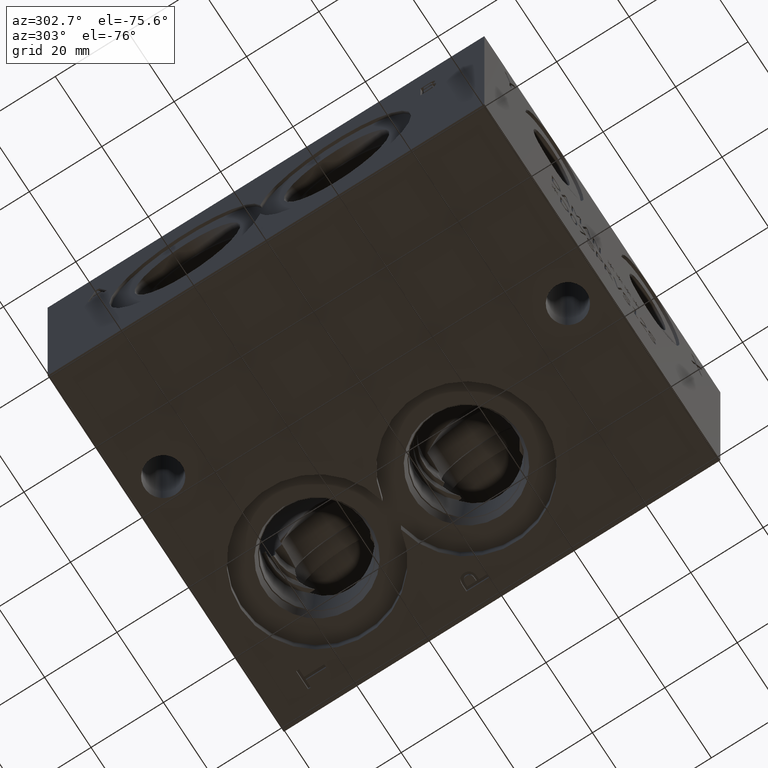
[diagram: clean part render]
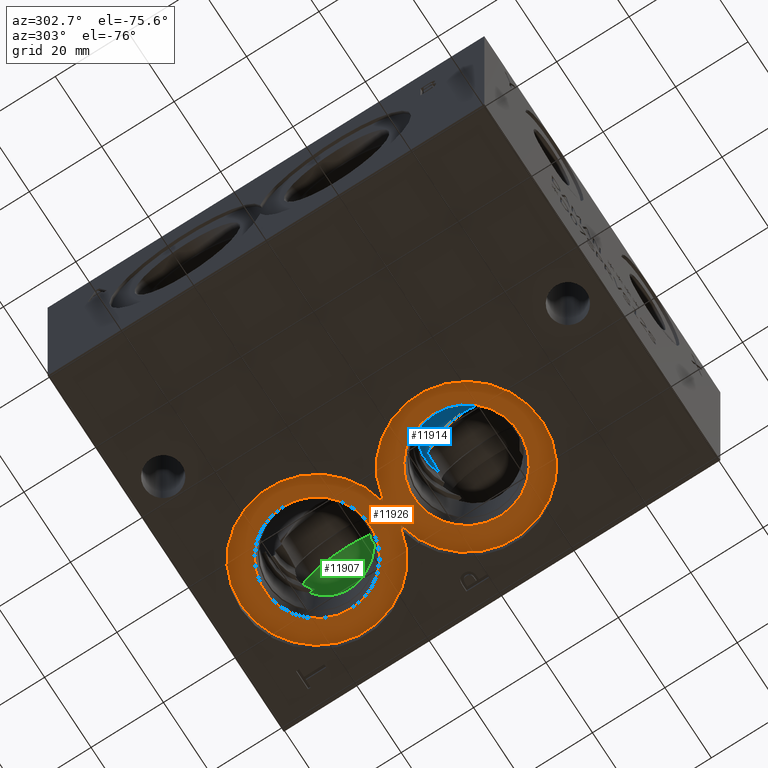
[diagram: same view with three faces highlighted in distinct colors, each labeled with its STEP entity id]
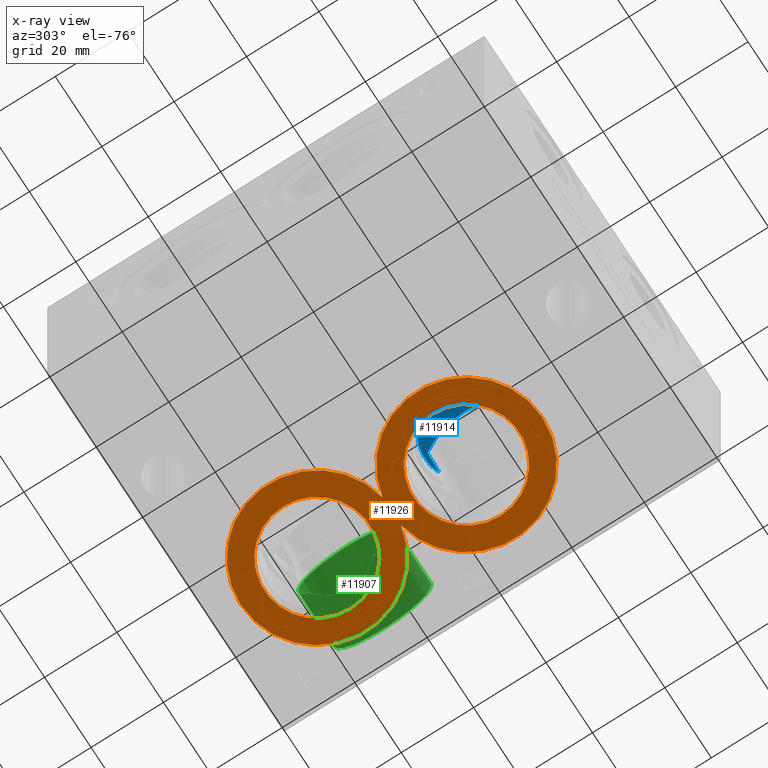
[diagram: x-ray of the same camera — body ghosted, the three highlighted faces saturated]
A machine part, auxiliary view with three faces highlighted in distinct colors.
The next image is the same camera in x-ray (body ghosted, the three faces saturated) — at least one of them is partly hidden behind the body in this view.
Their STEP definitions:

[orange] entity #11926 — the highlighted planar face has unit normal (0, 0, 1).
#181=CIRCLE('',#12443,21.0185);
#182=CIRCLE('',#12445,14.5923);
#183=CIRCLE('',#12446,14.5923);
#203=CIRCLE('',#12481,21.0185);
#204=CIRCLE('',#12483,14.5923);
#205=CIRCLE('',#12484,14.5923);
#444=FACE_BOUND('',#2082,.T.);
#445=FACE_BOUND('',#2083,.T.);
#1420=FACE_OUTER_BOUND('',#2081,.T.);
#2081=EDGE_LOOP('',(#10007,#10008));
#2082=EDGE_LOOP('',(#10009,#10010));
#2083=EDGE_LOOP('',(#10011,#10012));
#5359=VERTEX_POINT('',#20001);
#5360=VERTEX_POINT('',#20003);
#5361=VERTEX_POINT('',#20007);
#5362=VERTEX_POINT('',#20008);
#5392=VERTEX_POINT('',#20200);
#5393=VERTEX_POINT('',#20201);
#6944=EDGE_CURVE('',#5359,#5360,#181,.T.);
#6946=EDGE_CURVE('',#5361,#5362,#182,.T.);
#6947=EDGE_CURVE('',#5362,#5361,#183,.T.);
#6992=EDGE_CURVE('',#5360,#5359,#203,.T.);
#6993=EDGE_CURVE('',#5392,#5393,#204,.T.);
#6994=EDGE_CURVE('',#5393,#5392,#205,.T.);
#10007=ORIENTED_EDGE('',*,*,#6992,.F.);
#10008=ORIENTED_EDGE('',*,*,#6944,.F.);
#10009=ORIENTED_EDGE('',*,*,#6946,.T.);
#10010=ORIENTED_EDGE('',*,*,#6947,.T.);
#10011=ORIENTED_EDGE('',*,*,#6993,.T.);
#10012=ORIENTED_EDGE('',*,*,#6994,.T.);
#10963=PLANE('',#12482);
#11926=ADVANCED_FACE('',(#1420,#444,#445),#10963,.F.);
#12443=AXIS2_PLACEMENT_3D('',#20004,#14566,#14567);
#12445=AXIS2_PLACEMENT_3D('',#20009,#14571,#14572);
#12446=AXIS2_PLACEMENT_3D('',#20010,#14573,#14574);
#12481=AXIS2_PLACEMENT_3D('',#20198,#14653,#14654);
#12482=AXIS2_PLACEMENT_3D('',#20199,#14655,#14656);
#12483=AXIS2_PLACEMENT_3D('',#20202,#14657,#14658);
#12484=AXIS2_PLACEMENT_3D('',#20203,#14659,#14660);
#14566=DIRECTION('center_axis',(0.,0.,1.));
#14567=DIRECTION('ref_axis',(1.,0.,0.));
#14571=DIRECTION('center_axis',(0.,0.,1.));
#14572=DIRECTION('ref_axis',(1.,0.,0.));
#14573=DIRECTION('center_axis',(0.,0.,1.));
#14574=DIRECTION('ref_axis',(1.,0.,0.));
#14653=DIRECTION('center_axis',(0.,0.,1.));
#14654=DIRECTION('ref_axis',(1.,0.,0.));
#14655=DIRECTION('center_axis',(0.,0.,1.));
#14656=DIRECTION('ref_axis',(1.,0.,0.));
#14657=DIRECTION('center_axis',(0.,0.,1.));
#14658=DIRECTION('ref_axis',(1.,0.,0.));
#14659=DIRECTION('center_axis',(0.,0.,1.));
#14660=DIRECTION('ref_axis',(1.,0.,0.));
#20001=CARTESIAN_POINT('',(75.4340343339049,71.4375,3.81));
#20003=CARTESIAN_POINT('',(67.4663656660951,71.4375,3.81));
#20004=CARTESIAN_POINT('Origin',(71.4502,92.075,3.81));
#20007=CARTESIAN_POINT('',(86.0425,92.075,3.81));
#20008=CARTESIAN_POINT('',(56.8579,92.075,3.81));
#20009=CARTESIAN_POINT('Origin',(71.4502,92.075,3.81));
#20010=CARTESIAN_POINT('Origin',(71.4502,92.075,3.81));
#20198=CARTESIAN_POINT('Origin',(71.4502,50.8,3.81));
#20199=CARTESIAN_POINT('Origin',(86.0425,50.8,3.81));
#20200=CARTESIAN_POINT('',(86.0425,50.8,3.81));
#20201=CARTESIAN_POINT('',(56.8579,50.8,3.81));
#20202=CARTESIAN_POINT('Origin',(71.4502,50.8,3.81));
#20203=CARTESIAN_POINT('Origin',(71.4502,50.8,3.81));

[blue] entity #11914 — the highlighted conical surface has half-angle 60 deg.
#98=CONICAL_SURFACE('',#12454,5.7531,1.0471975511966);
#188=CIRCLE('',#12455,11.5062);
#779=B_SPLINE_CURVE_WITH_KNOTS('',3,(#20028,#20029,#20030,#20031,#20032,
#20033,#20034,#20035,#20036,#20037,#20038,#20039,#20040,#20041,#20042,#20043,
#20044,#20045,#20046,#20047,#20048,#20049),.UNSPECIFIED.,.F.,.F.,(4,2,2,
2,2,2,2,2,2,2,4),(2.01189149208214,2.09373382588156,2.44268946352848,2.79164510117541,
3.02935355425341,3.26706200733141,3.47118819933564,3.67531439133987,4.02843997387604,
4.38156555641221,4.39087054353072),.UNSPECIFIED.);
#780=B_SPLINE_CURVE_WITH_KNOTS('',3,(#20052,#20053,#20054,#20055,#20056,
#20057),.UNSPECIFIED.,.F.,.F.,(4,2,4),(2.88771073771434,2.95869221847608,
3.4340856360223),.UNSPECIFIED.);
#1408=FACE_OUTER_BOUND('',#2069,.T.);
#2069=EDGE_LOOP('',(#9935,#9936,#9937));
#5367=VERTEX_POINT('',#20026);
#5368=VERTEX_POINT('',#20027);
#5369=VERTEX_POINT('',#20050);
#6955=EDGE_CURVE('',#5367,#5368,#779,.T.);
#6956=EDGE_CURVE('',#5367,#5369,#188,.T.);
#6957=EDGE_CURVE('',#5368,#5369,#780,.T.);
#9935=ORIENTED_EDGE('',*,*,#6955,.F.);
#9936=ORIENTED_EDGE('',*,*,#6956,.T.);
#9937=ORIENTED_EDGE('',*,*,#6957,.F.);
#11914=ADVANCED_FACE('',(#1408),#98,.F.);
#12454=AXIS2_PLACEMENT_3D('',#20025,#14592,#14593);
#12455=AXIS2_PLACEMENT_3D('',#20051,#14594,#14595);
#14592=DIRECTION('center_axis',(0.,0.,-1.));
#14593=DIRECTION('ref_axis',(-0.967611865128273,0.252442624100971,0.));
#14594=DIRECTION('center_axis',(0.,0.,-1.));
#14595=DIRECTION('ref_axis',(1.,0.,0.));
#20025=CARTESIAN_POINT('Origin',(71.4502,50.8,37.2111438336748));
#20026=CARTESIAN_POINT('',(70.3821344063609,39.3434789605359,33.88959));
#20027=CARTESIAN_POINT('',(70.74278,61.1787558593382,34.5266169640349));
#20028=CARTESIAN_POINT('Ctrl Pts',(70.3821344063609,39.3434789605359,33.88959));
#20029=CARTESIAN_POINT('Ctrl Pts',(70.2672487408472,39.5714781271394,34.0145000043378));
#20030=CARTESIAN_POINT('Ctrl Pts',(70.1542219470524,39.7999118521081,34.138376859169));
#20031=CARTESIAN_POINT('Ctrl Pts',(69.5704842616892,41.0050275485885,34.7846425543015));
#20032=CARTESIAN_POINT('Ctrl Pts',(69.1346054771949,41.9890970436658,35.2873030029356));
#20033=CARTESIAN_POINT('Ctrl Pts',(68.4034172297671,43.9973626545964,36.2467802327419));
#20034=CARTESIAN_POINT('Ctrl Pts',(68.1078129961189,45.0214249763685,36.703652392201));
#20035=CARTESIAN_POINT('Ctrl Pts',(67.8445629445876,46.8124438164804,37.4433245310726));
#20036=CARTESIAN_POINT('Ctrl Pts',(67.8046908502403,47.6168039239969,37.7642014740276));
#20037=CARTESIAN_POINT('Ctrl Pts',(67.8860808717586,49.2382183812738,38.318104015088));
#20038=CARTESIAN_POINT('Ctrl Pts',(67.9971152003617,50.057851090749,38.5450178844303));
#20039=CARTESIAN_POINT('Ctrl Pts',(68.1402001276011,51.5219358084862,38.616221150163));
#20040=CARTESIAN_POINT('Ctrl Pts',(68.1842937904309,52.2465911188186,38.501918883564));
#20041=CARTESIAN_POINT('Ctrl Pts',(68.3103396609093,53.6602884400418,38.1069061476227));
#20042=CARTESIAN_POINT('Ctrl Pts',(68.4031601146883,54.3530117971536,37.8431029523439));
#20043=CARTESIAN_POINT('Ctrl Pts',(68.7316481947334,56.0455660227015,37.1519560796689));
#20044=CARTESIAN_POINT('Ctrl Pts',(69.0407460908371,57.0789333752279,36.6671059555553));
#20045=CARTESIAN_POINT('Ctrl Pts',(69.7904594811097,59.1114985198847,35.653023113344));
#20046=CARTESIAN_POINT('Ctrl Pts',(70.2291775688556,60.1098906115251,35.1207760302629));
#20047=CARTESIAN_POINT('Ctrl Pts',(70.7176202170495,61.1265700186042,34.5556717983246));
#20048=CARTESIAN_POINT('Ctrl Pts',(70.730187028592,61.1526659495716,34.5411506950421));
#20049=CARTESIAN_POINT('Ctrl Pts',(70.7427800000003,61.1787558593386,34.5266169640359));
#20050=CARTESIAN_POINT('',(76.1151523301387,61.3181204688639,33.88959));
#20051=CARTESIAN_POINT('Origin',(71.4502,50.8,33.88959));
#20052=CARTESIAN_POINT('Ctrl Pts',(70.7427799999999,61.1787558593379,34.5266169640363));
#20053=CARTESIAN_POINT('Ctrl Pts',(70.9778103293508,61.1760776857127,34.537387230337));
#20054=CARTESIAN_POINT('Ctrl Pts',(71.2135950641276,61.1747044415706,34.5428592652461));
#20055=CARTESIAN_POINT('Ctrl Pts',(73.0348447251541,61.1747044415706,34.5428592652461));
#20056=CARTESIAN_POINT('Ctrl Pts',(74.5821452982343,61.2426739542066,34.2882468060995));
#20057=CARTESIAN_POINT('Ctrl Pts',(76.1151523301387,61.3181204688639,33.88959));

[green] entity #11907 — the highlighted cylindrical surface (bore or boss wall) has radius 13.495 mm, axis along (1, 0, 0).
#26=CYLINDRICAL_SURFACE('',#12436,13.495);
#177=CIRCLE('',#12437,13.495);
#178=CIRCLE('',#12438,13.495);
#179=CIRCLE('',#12439,13.495);
#180=CIRCLE('',#12440,13.495);
#777=B_SPLINE_CURVE_WITH_KNOTS('',3,(#19947,#19948,#19949,#19950,#19951,
#19952,#19953,#19954,#19955,#19956,#19957,#19958,#19959,#19960,#19961,#19962),
 .UNSPECIFIED.,.F.,.F.,(4,2,2,2,2,2,2,4),(1.13677695459243,1.29019437783011,
1.58415647963276,2.01917402584803,2.23668279895566,2.45419157206329,2.926631718692,
3.07599351553705),.UNSPECIFIED.);
#1401=FACE_OUTER_BOUND('',#2062,.T.);
#2062=EDGE_LOOP('',(#9894,#9895,#9896,#9897,#9898,#9899,#9900,#9901));
#3235=LINE('',#19932,#4345);
#3242=LINE('',#19995,#4352);
#4345=VECTOR('',#14523,10.);
#4352=VECTOR('',#14554,13.495);
#5346=VERTEX_POINT('',#19929);
#5347=VERTEX_POINT('',#19931);
#5351=VERTEX_POINT('',#19945);
#5356=VERTEX_POINT('',#19991);
#5357=VERTEX_POINT('',#19992);
#5358=VERTEX_POINT('',#19994);
#6921=EDGE_CURVE('',#5347,#5346,#3235,.T.);
#6928=EDGE_CURVE('',#5346,#5351,#777,.T.);
#6938=EDGE_CURVE('',#5356,#5357,#177,.T.);
#6939=EDGE_CURVE('',#5356,#5358,#3242,.T.);
#6940=EDGE_CURVE('',#5347,#5358,#178,.T.);
#6941=EDGE_CURVE('',#5358,#5351,#179,.T.);
#6942=EDGE_CURVE('',#5357,#5356,#180,.T.);
#9894=ORIENTED_EDGE('',*,*,#6938,.F.);
#9895=ORIENTED_EDGE('',*,*,#6939,.T.);
#9896=ORIENTED_EDGE('',*,*,#6940,.F.);
#9897=ORIENTED_EDGE('',*,*,#6921,.T.);
#9898=ORIENTED_EDGE('',*,*,#6928,.T.);
#9899=ORIENTED_EDGE('',*,*,#6941,.F.);
#9900=ORIENTED_EDGE('',*,*,#6939,.F.);
#9901=ORIENTED_EDGE('',*,*,#6942,.F.);
#11907=ADVANCED_FACE('',(#1401),#26,.F.);
#12436=AXIS2_PLACEMENT_3D('',#19990,#14550,#14551);
#12437=AXIS2_PLACEMENT_3D('',#19993,#14552,#14553);
#12438=AXIS2_PLACEMENT_3D('',#19996,#14555,#14556);
#12439=AXIS2_PLACEMENT_3D('',#19997,#14557,#14558);
#12440=AXIS2_PLACEMENT_3D('',#19998,#14559,#14560);
#14523=DIRECTION('',(1.,0.,0.));
#14550=DIRECTION('center_axis',(1.,0.,0.));
#14551=DIRECTION('ref_axis',(0.,1.,0.));
#14552=DIRECTION('center_axis',(-1.,0.,0.));
#14553=DIRECTION('ref_axis',(0.,1.,0.));
#14554=DIRECTION('',(-1.,0.,0.));
#14555=DIRECTION('center_axis',(1.,0.,0.));
#14556=DIRECTION('ref_axis',(0.,1.,0.));
#14557=DIRECTION('center_axis',(1.,0.,0.));
#14558=DIRECTION('ref_axis',(0.,1.,0.));
#14559=DIRECTION('center_axis',(-1.,0.,0.));
#14560=DIRECTION('ref_axis',(0.,1.,0.));
#19929=CARTESIAN_POINT('',(81.8745749787788,100.653176164652,22.86));
#19931=CARTESIAN_POINT('',(81.7626,100.653176164652,22.86));
#19932=CARTESIAN_POINT('',(91.6813,100.653176164652,22.86));
#19945=CARTESIAN_POINT('',(81.7626,83.3625315639022,20.2971089110071));
#19947=CARTESIAN_POINT('Ctrl Pts',(81.8745749787788,100.653176164652,22.86));
#19948=CARTESIAN_POINT('Ctrl Pts',(82.1345705919539,100.337224182255,22.4991616483179));
#19949=CARTESIAN_POINT('Ctrl Pts',(82.3939255149525,99.9923303486695,22.1446198728845));
#19950=CARTESIAN_POINT('Ctrl Pts',(83.1169186185111,98.9205814327512,21.1610527645771));
#19951=CARTESIAN_POINT('Ctrl Pts',(83.5474786247895,98.1290334024674,20.5802504138027));
#19952=CARTESIAN_POINT('Ctrl Pts',(84.3802498101269,96.1607226764204,19.4240431049292));
#19953=CARTESIAN_POINT('Ctrl Pts',(84.768373250739,94.741769792883,18.8489915083272));
#19954=CARTESIAN_POINT('Ctrl Pts',(84.9639903140055,92.5089891475376,18.3837077220464));
#19955=CARTESIAN_POINT('Ctrl Pts',(84.9672905381923,91.746993067968,18.2917569894618));
#19956=CARTESIAN_POINT('Ctrl Pts',(84.8470365785771,90.2463133531433,18.2365126834176));
#19957=CARTESIAN_POINT('Ctrl Pts',(84.7234522111857,89.5076342932037,18.2731605465208));
#19958=CARTESIAN_POINT('Ctrl Pts',(84.1712595640136,87.2926729265087,18.5528858094834));
#19959=CARTESIAN_POINT('Ctrl Pts',(83.5068649642689,85.8065354910008,19.0166056540706));
#19960=CARTESIAN_POINT('Ctrl Pts',(82.3650457740043,84.1151550553479,19.8524539230596));
#19961=CARTESIAN_POINT('Ctrl Pts',(82.0712283940745,83.727835550298,20.0694442355101));
#19962=CARTESIAN_POINT('Ctrl Pts',(81.7626,83.3625315639022,20.2971089110071));
#19990=CARTESIAN_POINT('Origin',(91.6813,90.5002,31.75));
#19991=CARTESIAN_POINT('',(97.315,77.0052,31.75));
#19992=CARTESIAN_POINT('',(97.315,90.5002,45.245));
#19993=CARTESIAN_POINT('Origin',(97.315,90.5002,31.75));
#19994=CARTESIAN_POINT('',(81.7626,77.0052,31.75));
#19995=CARTESIAN_POINT('',(91.6813,77.0052,31.75));
#19996=CARTESIAN_POINT('Origin',(81.7626,90.5002,31.75));
#19997=CARTESIAN_POINT('Origin',(81.7626,90.5002,31.75));
#19998=CARTESIAN_POINT('Origin',(97.315,90.5002,31.75));